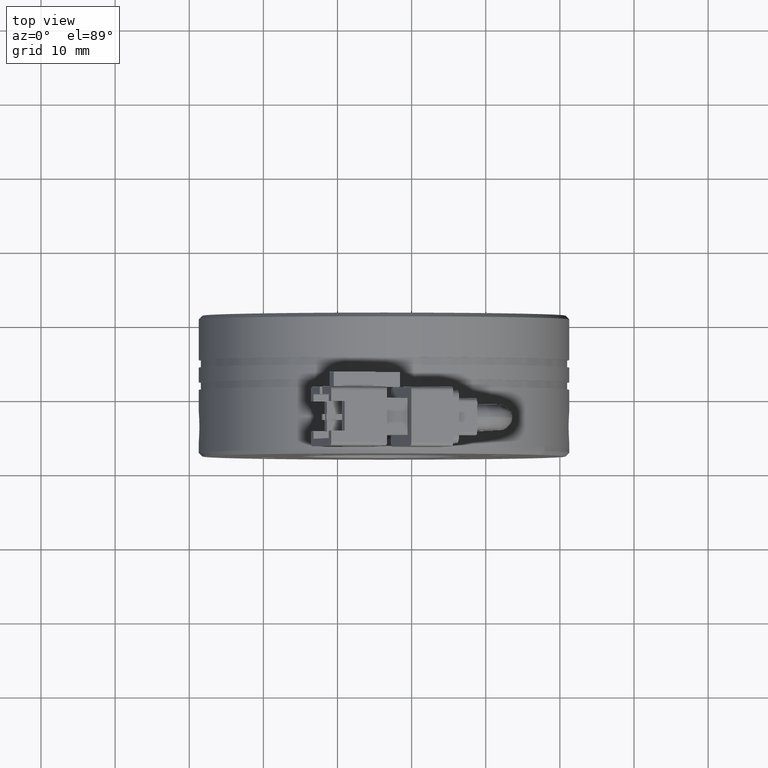
[diagram: clean part render]
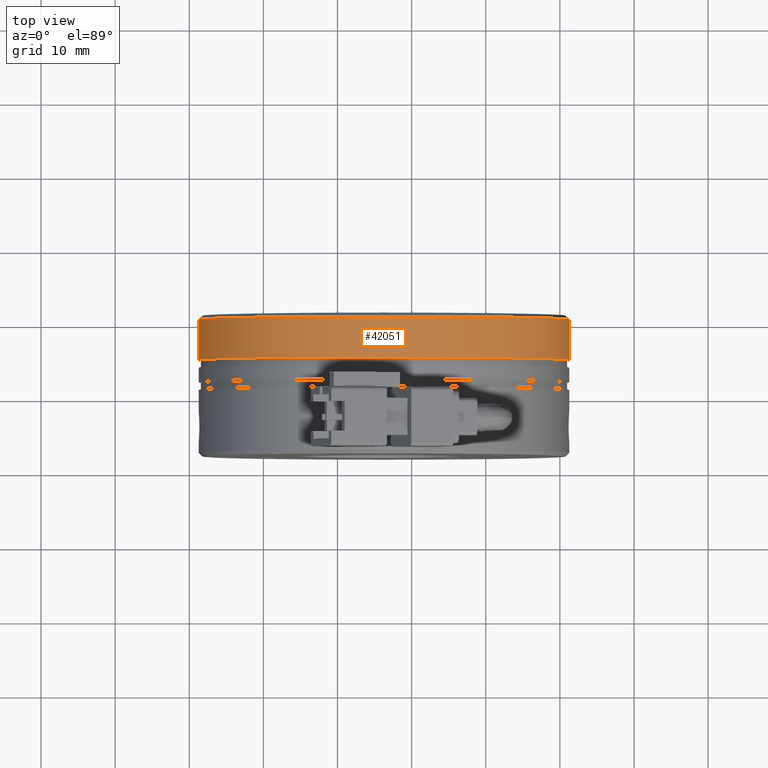
[diagram: same view with one face highlighted and labeled with its STEP entity id]
A machine part, top view. The second image highlights one B-rep face of the part: STEP entity #42051.
In plain terms, the highlighted cylindrical surface (partial cylindrical patch) has radius 25 mm, axis along (-0, 1, -0).
Its self-contained STEP definition (entity closure, byte-faithful):
#47 = AXIS2_PLACEMENT_3D ( 'NONE', #62, #42377, #41922 ) ;
#62 = CARTESIAN_POINT ( 'NONE',  ( -93.72635228848822900, 20.62753120665743000, 0.0000000000000000000 ) ) ;
#163 = CYLINDRICAL_SURFACE ( 'NONE', #8328, 25.00000000000000700 ) ;
#1322 = DIRECTION ( 'NONE',  ( -1.000000000000000000, -1.387778780781445200E-016, 0.0000000000000000000 ) ) ;
#1421 = CARTESIAN_POINT ( 'NONE',  ( -93.72635228848822900, 15.12753120665741800, 0.0000000000000000000 ) ) ;
#4739 = EDGE_LOOP ( 'NONE', ( #22453, #24110, #25927, #27653 ) ) ;
#6910 = EDGE_CURVE ( 'NONE', #49760, #11002, #47426, .T. ) ;
#8328 = AXIS2_PLACEMENT_3D ( 'NONE', #39923, #24046, #16262 ) ;
#10025 = EDGE_CURVE ( 'NONE', #27690, #18447, #43486, .T. ) ;
#11002 = VERTEX_POINT ( 'NONE', #33066 ) ;
#12776 = CARTESIAN_POINT ( 'NONE',  ( -118.7263522884882400, 24.01734612509121200, 0.0000000000000000000 ) ) ;
#15170 = DIRECTION ( 'NONE',  ( -1.224646799147351700E-016, 1.000000000000000000, -0.0000000000000000000 ) ) ;
#16262 = DIRECTION ( 'NONE',  ( -1.000000000000000000, -1.387778780781445200E-016, 0.0000000000000000000 ) ) ;
#16700 = DIRECTION ( 'NONE',  ( -1.224646799147351700E-016, 1.000000000000000000, -0.0000000000000000000 ) ) ;
#18447 = VERTEX_POINT ( 'NONE', #20695 ) ;
#20695 = CARTESIAN_POINT ( 'NONE',  ( -68.72635228848822900, 15.12753120665742100, 3.061616997868383000E-015 ) ) ;
#22453 = ORIENTED_EDGE ( 'NONE', *, *, #10025, .T. ) ;
#23379 = DIRECTION ( 'NONE',  ( -1.224646799147351700E-016, 1.000000000000000000, -0.0000000000000000000 ) ) ;
#23962 = CARTESIAN_POINT ( 'NONE',  ( -118.7263522884882400, 20.62753120665742700, 0.0000000000000000000 ) ) ;
#24046 = DIRECTION ( 'NONE',  ( -1.224646799147351700E-016, 1.000000000000000000, -0.0000000000000000000 ) ) ;
#24110 = ORIENTED_EDGE ( 'NONE', *, *, #27847, .T. ) ;
#24153 = AXIS2_PLACEMENT_3D ( 'NONE', #1421, #23379, #1322 ) ;
#24949 = LINE ( 'NONE', #12776, #39145 ) ;
#25927 = ORIENTED_EDGE ( 'NONE', *, *, #6910, .F. ) ;
#27653 = ORIENTED_EDGE ( 'NONE', *, *, #48131, .F. ) ;
#27690 = VERTEX_POINT ( 'NONE', #38290 ) ;
#27847 = EDGE_CURVE ( 'NONE', #18447, #11002, #50158, .T. ) ;
#33066 = CARTESIAN_POINT ( 'NONE',  ( -68.72635228848822900, 20.62753120665743400, 3.061616997868383000E-015 ) ) ;
#38290 = CARTESIAN_POINT ( 'NONE',  ( -118.7263522884882400, 15.12753120665741400, 0.0000000000000000000 ) ) ;
#39145 = VECTOR ( 'NONE', #16700, 1000.000000000000000 ) ;
#39923 = CARTESIAN_POINT ( 'NONE',  ( -93.72635228848822900, 24.01734612509121500, 0.0000000000000000000 ) ) ;
#39948 = VECTOR ( 'NONE', #15170, 1000.000000000000000 ) ;
#41922 = DIRECTION ( 'NONE',  ( 1.000000000000000000, 1.387778780781445200E-016, 0.0000000000000000000 ) ) ;
#42051 = ADVANCED_FACE ( 'NONE', ( #44583 ), #163, .T. ) ;
#42377 = DIRECTION ( 'NONE',  ( -1.224646799147351500E-016, 1.000000000000000000, -0.0000000000000000000 ) ) ;
#43486 = CIRCLE ( 'NONE', #24153, 25.00000000000000700 ) ;
#44583 = FACE_OUTER_BOUND ( 'NONE', #4739, .T. ) ;
#47426 = CIRCLE ( 'NONE', #47, 25.00000000000000700 ) ;
#48131 = EDGE_CURVE ( 'NONE', #27690, #49760, #24949, .T. ) ;
#49760 = VERTEX_POINT ( 'NONE', #23962 ) ;
#50158 = LINE ( 'NONE', #50242, #39948 ) ;
#50242 = CARTESIAN_POINT ( 'NONE',  ( -68.72635228848822900, 24.01734612509121900, 3.061616997868383400E-015 ) ) ;